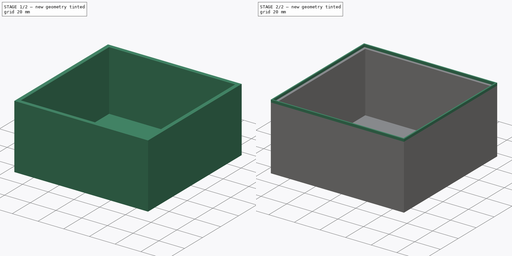
[diagram: build sequence overview — one tinted view per stage of 2, left to right]
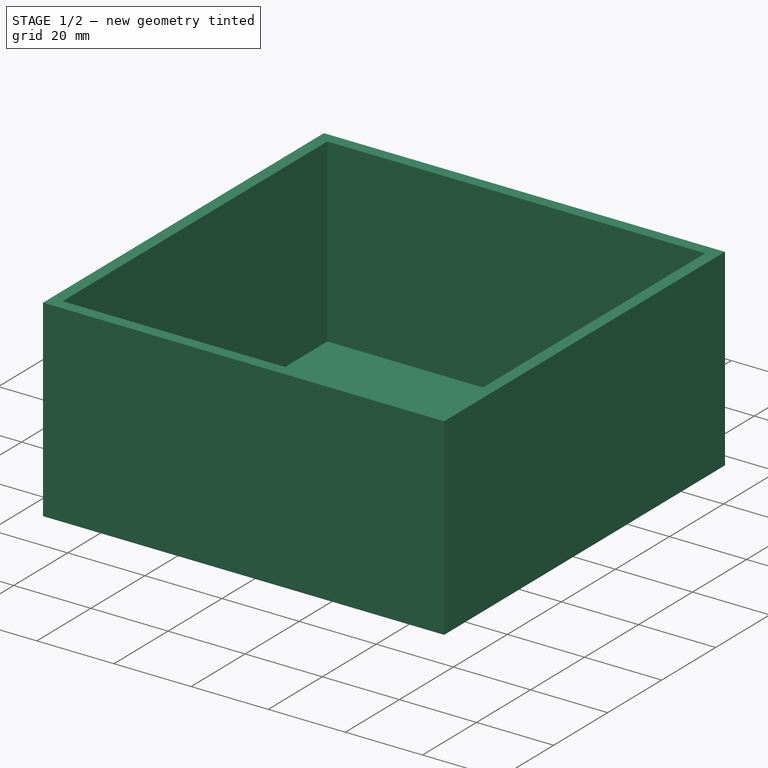
[diagram: stage 1 of 2 — iso view after this stage's code; geometry added in this stage tinted green]
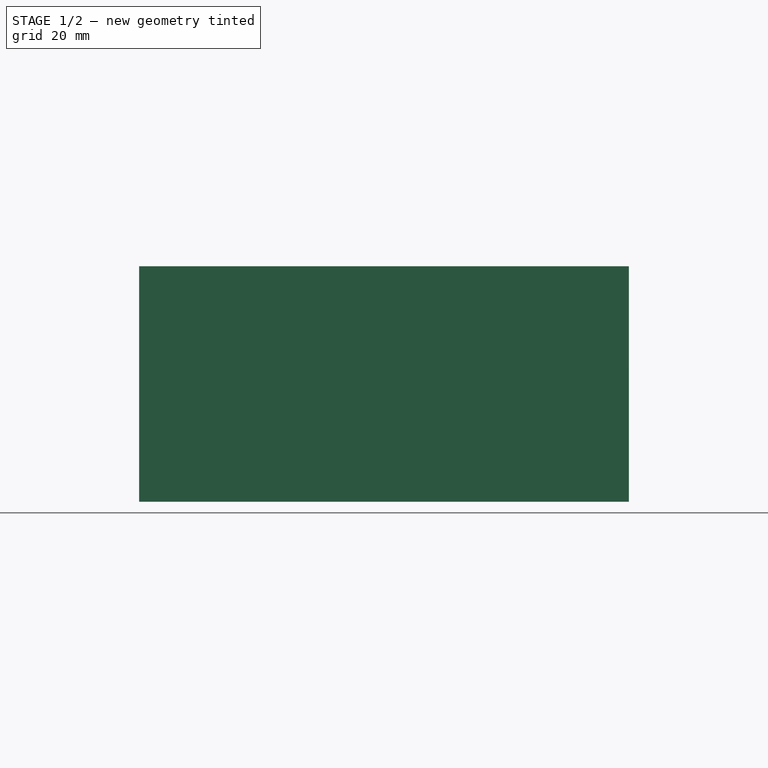
[diagram: stage 1 of 2 — front view after this stage's code; geometry added in this stage tinted green]
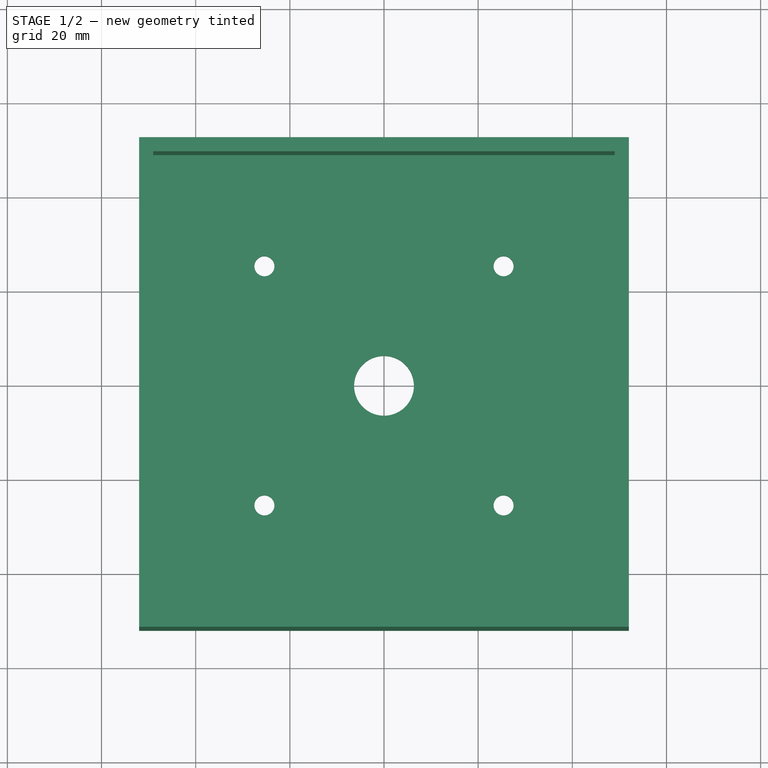
[diagram: stage 1 of 2 — top view after this stage's code; geometry added in this stage tinted green]
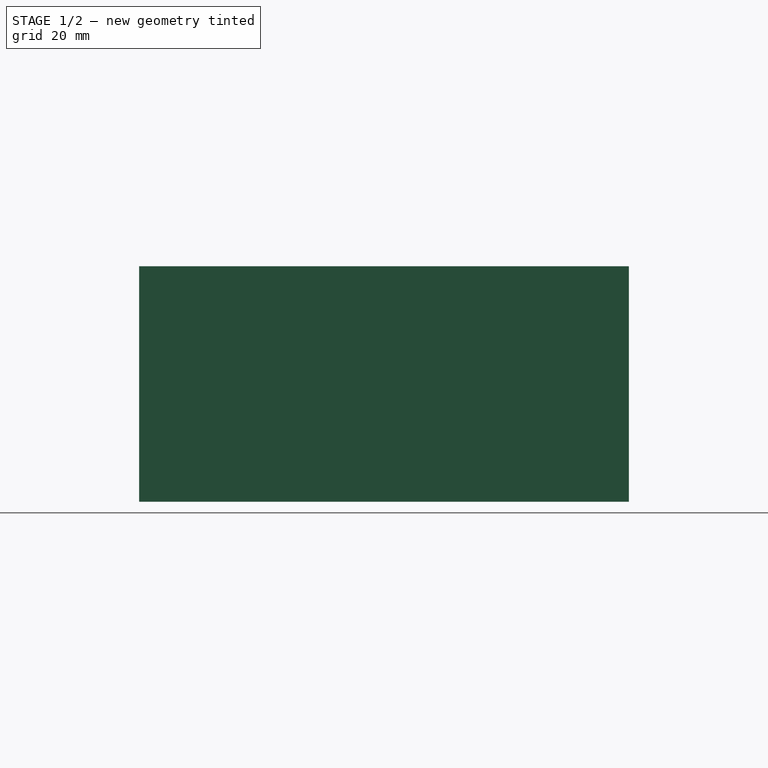
[diagram: stage 1 of 2 — right view after this stage's code; geometry added in this stage tinted green]
FCSTD DOCUMENT  (FreeCAD 0.20R29177 (Git))
Label: Lensmount
License: All rights reserved
LicenseURL: http://en.wikipedia.org/wiki/All_rights_reserved
objects: App::Part×24, Part::Feature×23, PartDesign::CoordinateSystem×5, Sketcher::SketchObject×5, PartDesign::Pad×4, App::DocumentObjectGroup×3, App::Link×3, PartDesign::Body×2, App::FeaturePython×1
note: 43 computed .brp shape members not serialized (recipe doc carries the construction recipe); baked Part::Feature solids carry a one-line shape summary decoded from their .brp

FEATURE [Part::Feature] Part__Feature  label="COMPOUND"
  shape: bbox 8.395 x 8.978 x 16.8 mm, 23 faces, 2 solids (baked)
FEATURE [App::Part] TO_18_2_Lens  label="TO-18-2_Lens"
  Group = -> [Part__Feature]
  Origin = -> Origin
  Placement = pos=(106.68,-82.55,1.65) rot=(0,0,1;0rad)
FEATURE [Part::Feature] Part__Feature001  label="SOLID"
  shape: bbox 1.6 x 0.8 x 0.45 mm, 26 faces (baked)
FEATURE [App::Part] R_0603_1608Metric
  Group = -> [Part__Feature001]
  Origin = -> Origin001
  Placement = pos=(109.22,-85.725,-0.05) rot=(0.707107,-0.707107,0;3.14159rad)
FEATURE [Part::Feature] Part__Feature002  label="SOLID001"
  shape: bbox 3.494 x 3.773 x 1.55 mm, 109 faces (baked)
FEATURE [App::Part] SOT_23_5  label="SOT-23-5"
  Group = -> [Part__Feature002]
  Origin = -> Origin002
  Placement = pos=(109.22,-72.39,-0.05) rot=(0,1,0;3.14159rad)
FEATURE [Part::Feature] Part__Feature003  label="SOLID002"
  shape: bbox 3.2 x 1.6 x 1.6 mm, 28 faces (baked)
FEATURE [App::Part] C_1206_3216Metric
  Group = -> [Part__Feature003]
  Origin = -> Origin003
  Placement = pos=(96.8125,-74.295,-0.05) rot=(0.707107,-0.707107,0;3.14159rad)
FEATURE [Part::Feature] Part__Feature004  label="SOLID003"
  shape: bbox 3.2 x 1.6 x 1.6 mm, 28 faces (baked)
FEATURE [App::Part] C_1206_3216Metric001
  Group = -> [Part__Feature004]
  Origin = -> Origin004
  Placement = pos=(87.63,-75.565,-0.05) rot=(1,0,0;3.14159rad)
FEATURE [Part::Feature] Part__Feature005  label="SOLID004"
  shape: bbox 3.2 x 1.6 x 1.6 mm, 28 faces (baked)
FEATURE [App::Part] C_1206_3216Metric002
  Group = -> [Part__Feature005]
  Origin = -> Origin005
  Placement = pos=(115.57,-72.39,-0.05) rot=(0,1,0;3.14159rad)
FEATURE [Part::Feature] Part__Feature006  label="SOLID005"
  shape: bbox 3.2 x 1.6 x 1.6 mm, 28 faces (baked)
FEATURE [App::Part] C_1206_3216Metric003
  Group = -> [Part__Feature006]
  Origin = -> Origin006
  Placement = pos=(107.315,-67.31,-0.05) rot=(0.707107,-0.707107,0;3.14159rad)
FEATURE [Part::Feature] Part__Feature007  label="SOLID006"
  shape: bbox 1.6 x 0.8 x 0.45 mm, 26 faces (baked)
FEATURE [App::Part] R_0603_1608Metric001
  Group = -> [Part__Feature007]
  Origin = -> Origin007
  Placement = pos=(92.075,-81.28,-0.05) rot=(0,1,0;3.14159rad)
FEATURE [Part::Feature] Part__Feature008  label="SOLID007"
  shape: bbox 2 x 1.2 x 0.45 mm, 26 faces (baked)
FEATURE [App::Part] R_0805_2012Metric
  Group = -> [Part__Feature008]
  Origin = -> Origin008
  Placement = pos=(85.09,-66.802,-0.05) rot=(0.707107,0.707107,0;3.14159rad)
FEATURE [Part::Feature] Part__Feature009  label="SOLID008"
  shape: bbox 2 x 1.2 x 0.45 mm, 26 faces (baked)
FEATURE [App::Part] R_0805_2012Metric001
  Group = -> [Part__Feature009]
  Origin = -> Origin009
  Placement = pos=(92.075,-79.375,-0.05) rot=(0,1,0;3.14159rad)
FEATURE [Part::Feature] Part__Feature010  label="SOLID009"
  shape: bbox 1.6 x 0.8 x 0.45 mm, 26 faces (baked)
FEATURE [App::Part] R_0603_1608Metric002
  Group = -> [Part__Feature010]
  Origin = -> Origin010
  Placement = pos=(110.49,-76.2,-0.05) rot=(0.707107,-0.707107,0;3.14159rad)
FEATURE [Part::Feature] Part__Feature011  label="SOLID010"
  shape: bbox 1.6 x 0.8 x 0.45 mm, 26 faces (baked)
FEATURE [App::Part] R_0603_1608Metric003
  Group = -> [Part__Feature011]
  Origin = -> Origin011
  Placement = pos=(114.3,-76.2,-0.05) rot=(0.707107,0.707107,0;3.14159rad)
FEATURE [Part::Feature] Part__Feature012  label="SOLID011"
  shape: bbox 2 x 1.2 x 0.45 mm, 26 faces (baked)
FEATURE [App::Part] R_0805_2012Metric002
  Group = -> [Part__Feature012]
  Origin = -> Origin012
  Placement = pos=(104.775,-75.565,-0.05) rot=(0,1,0;3.14159rad)
FEATURE [Part::Feature] Part__Feature013  label="SOLID012"
  shape: bbox 1.6 x 0.8 x 0.45 mm, 26 faces (baked)
FEATURE [App::Part] R_0603_1608Metric004
  Group = -> [Part__Feature013]
  Origin = -> Origin013
  Placement = pos=(112.395,-76.2,-0.05) rot=(0.707107,0.707107,0;3.14159rad)
FEATURE [Part::Feature] Part__Feature014  label="COMPOUND001"
  shape: bbox 13.37 x 7.372 x 8.689 mm, 76 faces, 3 solids (baked)
FEATURE [App::Part] CON_SMA_EDGE_S  label="CON-SMA-EDGE-S"
  Group = -> [Part__Feature014]
  Origin = -> Origin014
  Placement = pos=(78.1325,-82.55,-0.05) rot=(-1,0,0;1.5708rad)
FEATURE [Part::Feature] Part__Feature015  label="SOLID013"
  shape: bbox 3.2 x 2.5 x 2.5 mm, 28 faces (baked)
FEATURE [App::Part] C_1210_3225Metric
  Group = -> [Part__Feature015]
  Origin = -> Origin015
  Placement = pos=(89.535,-67.818,-0.05) rot=(0,1,0;3.14159rad)
FEATURE [Part::Feature] Part__Feature016  label="SOLID014"
  shape: bbox 2 x 1.2 x 0.45 mm, 26 faces (baked)
FEATURE [App::Part] R_0805_2012Metric003
  Group = -> [Part__Feature016]
  Origin = -> Origin016
  Placement = pos=(93.98,-71.755,-0.05) rot=(0.707107,-0.707107,0;3.14159rad)
FEATURE [Part::Feature] Part__Feature017  label="SOLID015"
  shape: bbox 3.494 x 3.773 x 1.55 mm, 109 faces (baked)
FEATURE [App::Part] SOT_23_5001  label="SOT-23-006"
  Group = -> [Part__Feature017]
  Origin = -> Origin017
  Placement = pos=(92.71,-76.2,-0.05) rot=(0,1,0;3.14159rad)
FEATURE [Part::Feature] Part__Feature018  label="SOLID016"
  shape: bbox 1.6 x 0.8 x 0.45 mm, 26 faces (baked)
FEATURE [App::Part] R_0603_1608Metric005
  Group = -> [Part__Feature018]
  Origin = -> Origin018
  Placement = pos=(107.315,-85.725,-0.05) rot=(0.707107,-0.707107,0;3.14159rad)
FEATURE [Part::Feature] Part__Feature019  label="SOLID017"
  shape: bbox 1.6 x 0.8 x 0.8 mm, 28 faces (baked)
FEATURE [App::Part] C_0603_1608Metric
  Group = -> [Part__Feature019]
  Origin = -> Origin019
  Placement = pos=(104.775,-73.66,-0.05) rot=(0,1,0;3.14159rad)
FEATURE [Part::Feature] Part__Feature020  label="SOLID018"
  shape: bbox 2 x 1.25 x 1.25 mm, 28 faces (baked)
FEATURE [App::Part] C_0805_2012Metric
  Group = -> [Part__Feature020]
  Origin = -> Origin020
  Placement = pos=(116.205,-76.2,-0.05) rot=(0.707107,-0.707107,0;3.14159rad)
FEATURE [Part::Feature] Part__Feature021  label="SOLID019"
  shape: bbox 7.62 x 5.8 x 15.26 mm, 91 faces (baked)
FEATURE [App::Part] Molex_KK_254_AE_6410_03A_1x03_P2_54mm_Vertical  label="Molex_KK-254_AE-6410-03A_1x03_P2.54mm_Vertical"
  Group = -> [Part__Feature021]
  Origin = -> Origin021
  Placement = pos=(133.33,-85.09,-0.05) rot=(0.707107,0.707107,0;3.14159rad)
FEATURE [Part::Feature] Part__Feature022  label="ADA4610 Transimpedance Amplifier PCB"
  shape: bbox 63.5 x 63.5 x 1.6 mm, 25 faces (baked)
FEATURE [PartDesign::CoordinateSystem] LCS_Origin
  AttacherType = Attacher::AttachEngine3D
  MapMode = 2
  Support = -> [X_Axis023]
FEATURE [App::DocumentObjectGroup] Constraints
FEATURE [App::FeaturePython] Variables  # WARN: FeaturePython — macro-defined, semantics opaque (R4)
  Type = App::PropertyContainer
FEATURE [App::DocumentObjectGroup] Configurations
FEATURE [Sketcher::SketchObject] Sketch
  FullyConstrained = true
  MapMode = 5
  Support = -> [XY_Plane024]
  sketch-geometry (11):
    g0: LineSegment StartX=-52 StartY=-52 StartZ=0 EndX=52 EndY=-52 EndZ=0
    g1: LineSegment StartX=52 StartY=-52 StartZ=0 EndX=52 EndY=52 EndZ=0
    g2: LineSegment StartX=52 StartY=52 StartZ=0 EndX=-52 EndY=52 EndZ=0
    g3: LineSegment StartX=-52 StartY=52 StartZ=0 EndX=-52 EndY=-52 EndZ=0
    g4: LineSegment StartX=-52 StartY=-52 StartZ=0 EndX=52 EndY=52 EndZ=0
    g5: LineSegment StartX=-52 StartY=52 StartZ=0 EndX=52 EndY=-52 EndZ=0
    g6: Circle CenterX=-25.4 CenterY=25.4 CenterZ=0 NormalX=0 NormalY=0 NormalZ=1 AngleXU=0 Radius=2.125
    g7: Circle CenterX=25.4 CenterY=25.4 CenterZ=0 NormalX=0 NormalY=0 NormalZ=1 AngleXU=0 Radius=2.125
    g8: Circle CenterX=25.4 CenterY=-25.4 CenterZ=0 NormalX=0 NormalY=0 NormalZ=1 AngleXU=0 Radius=2.125
    g9: Circle CenterX=-25.4 CenterY=-25.4 CenterZ=0 NormalX=0 NormalY=0 NormalZ=1 AngleXU=0 Radius=2.125
    g10: Circle CenterX=0 CenterY=0 CenterZ=0 NormalX=0 NormalY=0 NormalZ=1 AngleXU=0 Radius=6.35
  constraints (30):
    c: Horizontal(g0)
    c: Horizontal(g2)
    c: Vertical(g1)
    c: Vertical(g3)
    c: DistanceX(g4,g5) = 104
    c: DistanceY(g4,g5) = 104
    c: PointOnObject(g-1,g5)
    c: PointOnObject(g-1,g4)
    c: PointOnObject(g6,g5)
    c: PointOnObject(g7,g4)
    c: PointOnObject(g8,g5)
    c: PointOnObject(g9,g4)
    c: Equal(g6,g7)
    c: Equal(g6,g8)
    c: Equal(g6,g9)
    c: Radius(g6) = 2.125
    c: Coincident(g10,g-1)
    c: Radius(g10) = 6.35
    c: Coincident(g5,g2)
    c: Coincident(g5,g3)
    c: Coincident(g2,g4)
    c: Coincident(g2,g1)
    c: Coincident(g0,g1)
    c: Coincident(g0,g5)
    c: Coincident(g3,g4)
    c: Coincident(g3,g0)
    c: Distance(g6,g10) = 35.921
    c: Distance(g9,g10) = 35.921
    c: Distance(g8,g10) = 35.921
    c: Distance(g7,g10) = 35.921
FEATURE [PartDesign::Pad] Pad
  Direction = (0,0,1)
  Length = 3.175
  Length2 = 9.906
  Profile = -> Sketch
  ReferenceAxis = -> Sketch [N_Axis]
  Type = 0
FEATURE [Sketcher::SketchObject] Sketch002
  FullyConstrained = true
  MapMode = 5
  Placement = pos=(0,0,3.175) rot=(0,0,1;0rad)
  Support = -> [Pad]
FEATURE [Sketcher::SketchObject] Sketch003
  ExternalGeometry = -> [Pad]
  FullyConstrained = true
  MapMode = 5
  Placement = pos=(0,0,3.175) rot=(0,0,1;0rad)
  Support = -> [Pad]
  sketch-geometry (8):
    g0: LineSegment StartX=-52 StartY=-52 StartZ=0 EndX=52 EndY=-52 EndZ=0
    g1: LineSegment StartX=52 StartY=-52 StartZ=0 EndX=52 EndY=52 EndZ=0
    g2: LineSegment StartX=52 StartY=52 StartZ=0 EndX=-52 EndY=52 EndZ=0
    g3: LineSegment StartX=-52 StartY=52 StartZ=0 EndX=-52 EndY=-52 EndZ=0
    g4: LineSegment StartX=-49 StartY=-49 StartZ=0 EndX=49 EndY=-49 EndZ=0
    g5: LineSegment StartX=49 StartY=-49 StartZ=0 EndX=49 EndY=49 EndZ=0
    g6: LineSegment StartX=49 StartY=49 StartZ=0 EndX=-49 EndY=49 EndZ=0
    g7: LineSegment StartX=-49 StartY=49 StartZ=0 EndX=-49 EndY=-49 EndZ=0
  constraints (22):
    c: Coincident(g0,g1)
    c: Coincident(g1,g2)
    c: Coincident(g2,g3)
    c: Coincident(g3,g0)
    c: Horizontal(g0)
    c: Horizontal(g2)
    c: Vertical(g1)
    c: Vertical(g3)
    c: Coincident(g0,g-6)
    c: Coincident(g1,g-5)
    c: Coincident(g4,g5)
    c: Coincident(g5,g6)
    c: Coincident(g6,g7)
    c: Coincident(g7,g4)
    c: Horizontal(g4)
    c: Horizontal(g6)
    c: Vertical(g5)
    c: Vertical(g7)
    c: DistanceY(g6,g2) = 3
    c: DistanceX(g2,g6) = 3
    c: DistanceY(g0,g4) = 3
    c: DistanceX(g4,g0) = 3
FEATURE [PartDesign::Pad] Pad002  label="Walls"
  BaseFeature = -> Pad
  Direction = (0,0,1)
  Length = 46.863
  Length2 = 9.906
  Profile = -> Sketch003
  ReferenceAxis = -> Sketch003 [N_Axis]
  Type = 0
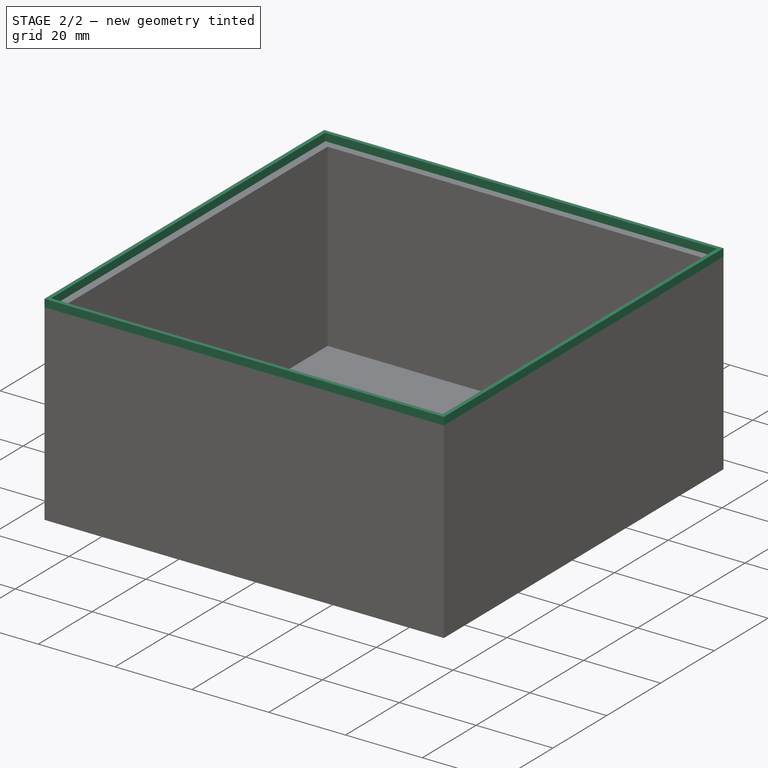
[diagram: stage 2 of 2 — iso view after this stage's code; geometry added in this stage tinted green]
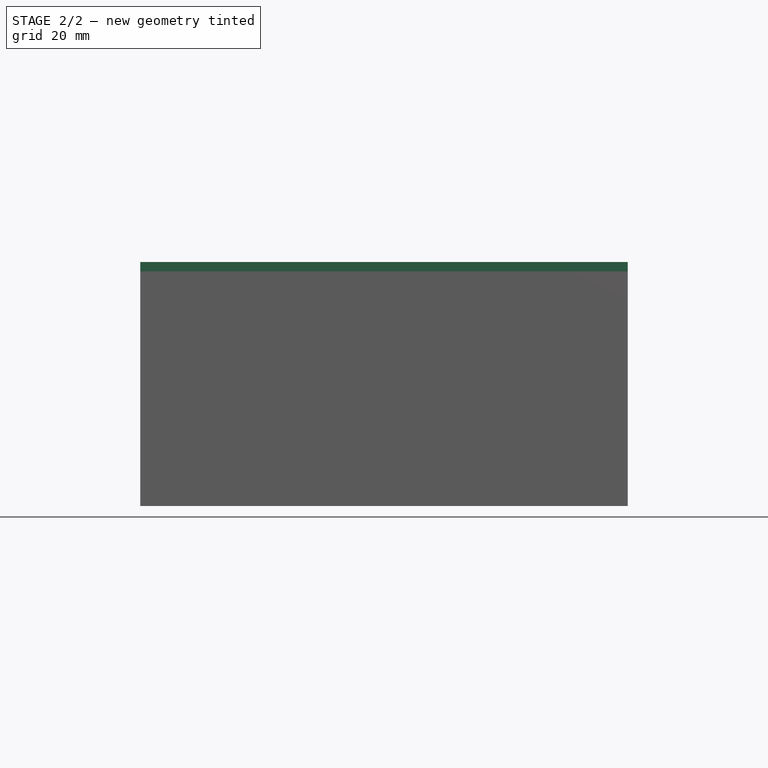
[diagram: stage 2 of 2 — front view after this stage's code; geometry added in this stage tinted green]
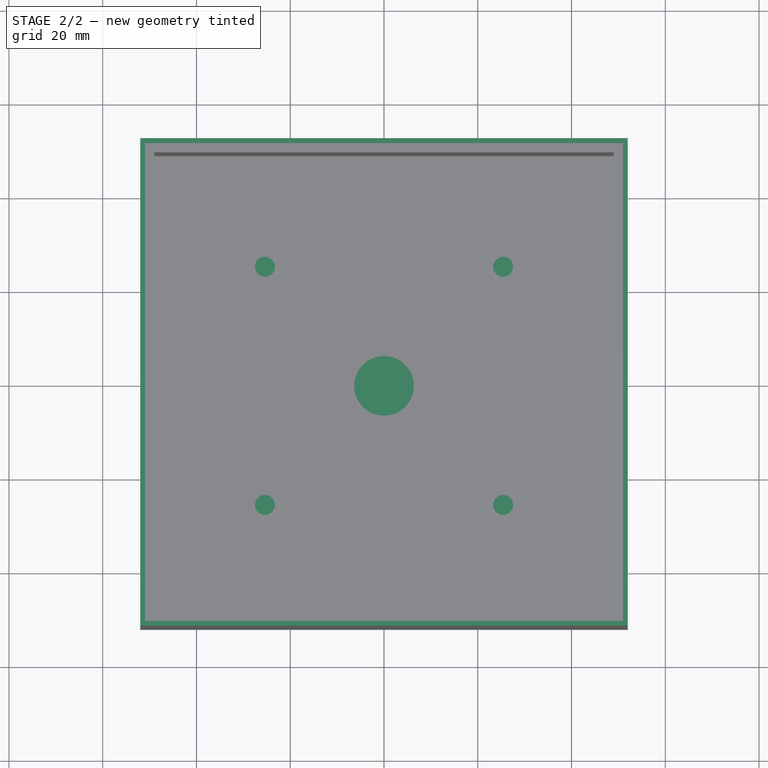
[diagram: stage 2 of 2 — top view after this stage's code; geometry added in this stage tinted green]
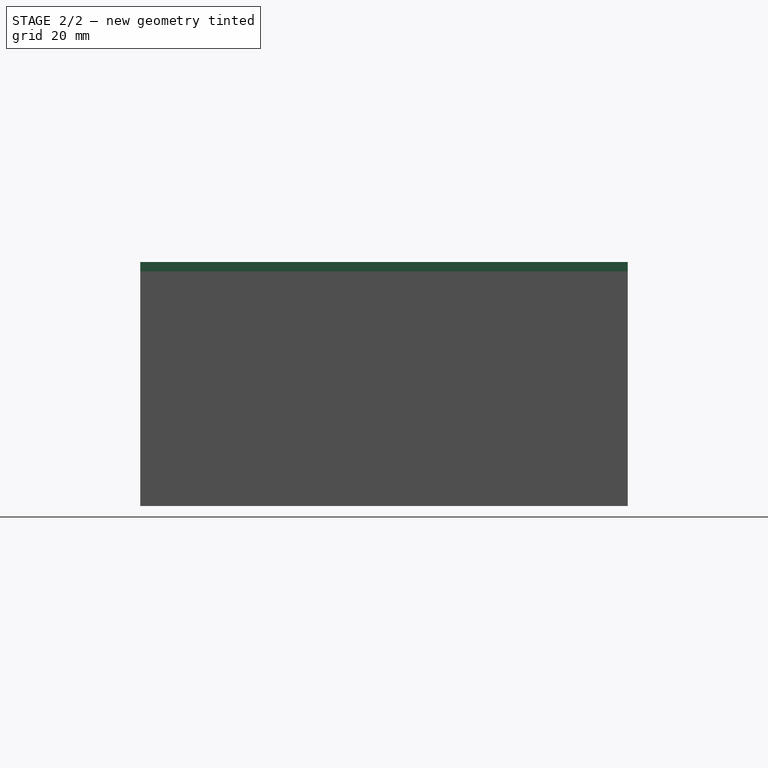
[diagram: stage 2 of 2 — right view after this stage's code; geometry added in this stage tinted green]
FEATURE [Sketcher::SketchObject] Sketch001
  FullyConstrained = true
  MapMode = 5
  Support = -> [XY_Plane025]
  sketch-geometry (6):
    g0: LineSegment StartX=-50 StartY=-50 StartZ=0 EndX=50 EndY=-50 EndZ=0
    g1: LineSegment StartX=50 StartY=-50 StartZ=0 EndX=50 EndY=50 EndZ=0
    g2: LineSegment StartX=50 StartY=50 StartZ=0 EndX=-50 EndY=50 EndZ=0
    g3: LineSegment StartX=-50 StartY=50 StartZ=0 EndX=-50 EndY=-50 EndZ=0
    g4: LineSegment StartX=-50 StartY=-50 StartZ=0 EndX=50 EndY=50 EndZ=0
    g5: LineSegment StartX=50 StartY=-50 StartZ=0 EndX=-50 EndY=50 EndZ=0
  constraints (16):
    c: Coincident(g0,g1)
    c: Coincident(g1,g2)
    c: Coincident(g2,g3)
    c: Coincident(g3,g0)
    c: Horizontal(g0)
    c: Horizontal(g2)
    c: Vertical(g1)
    c: Vertical(g3)
    c: DistanceY(g3,g3) = 100
    c: DistanceX(g0,g0) = 100
    c: Coincident(g4,g0)
    c: Coincident(g4,g1)
    c: Coincident(g5,g0)
    c: Coincident(g5,g2)
    c: PointOnObject(g-1,g5)
    c: PointOnObject(g-1,g4)
FEATURE [PartDesign::Pad] Pad001
  Direction = (0,0,1)
  Length = 2
  Length2 = 9.906
  Profile = -> Sketch001
  ReferenceAxis = -> Sketch001 [N_Axis]
  Type = 0
FEATURE [Sketcher::SketchObject] Sketch004
  ExternalGeometry = -> [Pad002]
  FullyConstrained = true
  MapMode = 5
  Placement = pos=(0,0,50.038) rot=(0,0,1;0rad)
  Support = -> [Pad002]
  sketch-geometry (8):
    g0: LineSegment StartX=-52 StartY=-52 StartZ=0 EndX=52 EndY=-52 EndZ=0
    g1: LineSegment StartX=52 StartY=-52 StartZ=0 EndX=52 EndY=52 EndZ=0
    g2: LineSegment StartX=52 StartY=52 StartZ=0 EndX=-52 EndY=52 EndZ=0
    g3: LineSegment StartX=-52 StartY=52 StartZ=0 EndX=-52 EndY=-52 EndZ=0
    g4: LineSegment StartX=-50.984 StartY=-50.984 StartZ=0 EndX=50.984 EndY=-50.984 EndZ=0
    g5: LineSegment StartX=50.984 StartY=-50.984 StartZ=0 EndX=50.984 EndY=50.984 EndZ=0
    g6: LineSegment StartX=50.984 StartY=50.984 StartZ=0 EndX=-50.984 EndY=50.984 EndZ=0
    g7: LineSegment StartX=-50.984 StartY=50.984 StartZ=0 EndX=-50.984 EndY=-50.984 EndZ=0
  constraints (22):
    c: Coincident(g0,g1)
    c: Coincident(g1,g2)
    c: Coincident(g2,g3)
    c: Coincident(g3,g0)
    c: Horizontal(g0)
    c: Horizontal(g2)
    c: Vertical(g1)
    c: Vertical(g3)
    c: Coincident(g0,g-4)
    c: Coincident(g1,g-3)
    c: Coincident(g4,g5)
    c: Coincident(g5,g6)
    c: Coincident(g6,g7)
    c: Coincident(g7,g4)
    c: Horizontal(g4)
    c: Horizontal(g6)
    c: Vertical(g5)
    c: Vertical(g7)
    c: DistanceX(g2,g6) = 1.016
    c: DistanceY(g6,g2) = 1.016
    c: DistanceY(g0,g4) = 1.016
    c: DistanceX(g4,g0) = 1.016
FEATURE [PartDesign::Pad] Pad003
  BaseFeature = -> Pad002
  Direction = (0,0,1)
  Length = 2
  Length2 = 9.906
  Profile = -> Sketch004
  ReferenceAxis = -> Sketch004 [N_Axis]
  Type = 0
FEATURE [PartDesign::CoordinateSystem] LCS_MH1
  AttacherType = Attacher::AttachEngine3D
  MapMode = 11
  Placement = pos=(-25.4,-25.4,0) rot=(0,0,1;1.5708rad)
  Support = -> [Pad003]
FEATURE [PartDesign::CoordinateSystem] LCS_LENS
  AttacherType = Attacher::AttachEngine3D
  MapMode = 45
  Placement = pos=(-3.21e-14,-6.2e-15,50.038) rot=(0,0,1;0rad)
  Support = -> [Pad003]
FEATURE [PartDesign::Body] Body  label="PCB Mount"
  Group = -> [Sketch,Pad,Sketch002,Sketch003,Pad002,Sketch004,Pad003,LCS_MH1,LCS_LENS]
  Origin = -> Origin024
  Tip = -> Pad003
FEATURE [PartDesign::CoordinateSystem] LCS_1
  AttacherType = Attacher::AttachEngine3D
  MapMode = 45
  Placement = pos=(-2e-16,0,0) rot=(0,0,1;0rad)
  Support = -> [Pad001]
FEATURE [PartDesign::Body] Body001  label="Lens"
  Group = -> [Sketch001,Pad001,LCS_1]
  Origin = -> Origin025
  Placement = pos=(0,0,70.32) rot=(0,0,1;0rad)
  Tip = -> Pad001
FEATURE [App::Link] PCB_Mount  label="PCB Mount001"
  AssemblyType = Part::Link
  AttachedBy = #LCS_LENS
  AttachedTo = Parent Assembly#LCS_Origin
  LinkPlacement = pos=(3.21e-14,6.2e-15,-50.038) rot=(0,0,1;0rad)
  LinkedObject = -> Body
  Placement = pos=(3.21e-14,6.2e-15,-50.038) rot=(0,0,1;0rad)
  SolverId = Asm4EE
  expr: Placement = LCS_Origin.Placement * AttachmentOffset * LCS_LENS.Placement ^ -1
FEATURE [App::Link] Lens  label="Lens001"
  AssemblyType = Part::Link
  AttachedBy = #LCS_1
  AttachedTo = PCB_Mount#LCS_LENS
  LinkPlacement = pos=(2e-16,0,0) rot=(0,0,1;0rad)
  LinkedObject = -> Body001
  Placement = pos=(2e-16,0,0) rot=(0,0,1;0rad)
  SolverId = Asm4EE
  expr: Placement = PCB_Mount.Placement * LCS_LENS.Placement * AttachmentOffset * LCS_1.Placement ^ -1
FEATURE [App::Link] ADA4610_Transimpedance_Amplifier_1001  label="ADA4610 Transimpedance Amplifier 002"
  AssemblyType = Part::Link
  AttachedBy = #LCS_MH1001
  AttachedTo = PCB_Mount#LCS_MH1
  AttachmentOffset = pos=(0,0,-5.08) rot=(0,0,1;1.5708rad)
  LinkPlacement = pos=(-82.55,-107.95,-56.718) rot=(0,0,1;1.5708rad)
  LinkedObject = -> ADA4610_Transimpedance_Amplifier_1
  Placement = pos=(-82.55,-107.95,-56.718) rot=(0,0,1;1.5708rad)
  SolverId = Asm4EE
  expr: Placement = PCB_Mount.Placement * LCS_MH1.Placement * AttachmentOffset * LCS_MH1001.Placement ^ -1
FEATURE [App::Part] Model
  AssemblyType = Part::Link
  Group = -> [LCS_Origin,Constraints,Variables,Configurations,PCB_Mount,Lens,ADA4610_Transimpedance_Amplifier_1001]
  Origin = -> Origin023
  Type = Assembly
FEATURE [PartDesign::CoordinateSystem] LCS_MH1001
  AttacherType = Attacher::AttachEngine3D
  MapMode = 11
  Placement = pos=(82.55,-57.15,1.6) rot=(0,0,1;1.5708rad)
  Support = -> [Part__Feature022]
FEATURE [App::Part] ADA4610_Transimpedance_Amplifier_1  label="ADA4610 Transimpedance Amplifier 1"
  Group = -> [TO_18_2_Lens,R_0603_1608Metric,SOT_23_5,C_1206_3216Metric,C_1206_3216Metric001,C_1206_3216Metric002,C_1206_3216Metric003,R_0603_1608Metric001,R_0805_2012Metric,R_0805_2012Metric001,R_0603_1608Metric002,R_0603_1608Metric003,R_0805_2012Metric002,R_0603_1608Metric004,CON_SMA_EDGE_S,C_1210_3225Metric,R_0805_2012Metric003,SOT_23_5001,R_0603_1608Metric005,C_0603_1608Metric,C_0805_2012Metric,+3 more]
  Origin = -> Origin022
FEATURE [App::DocumentObjectGroup] Parts
  Group = -> [ADA4610_Transimpedance_Amplifier_1,Body,Body001]
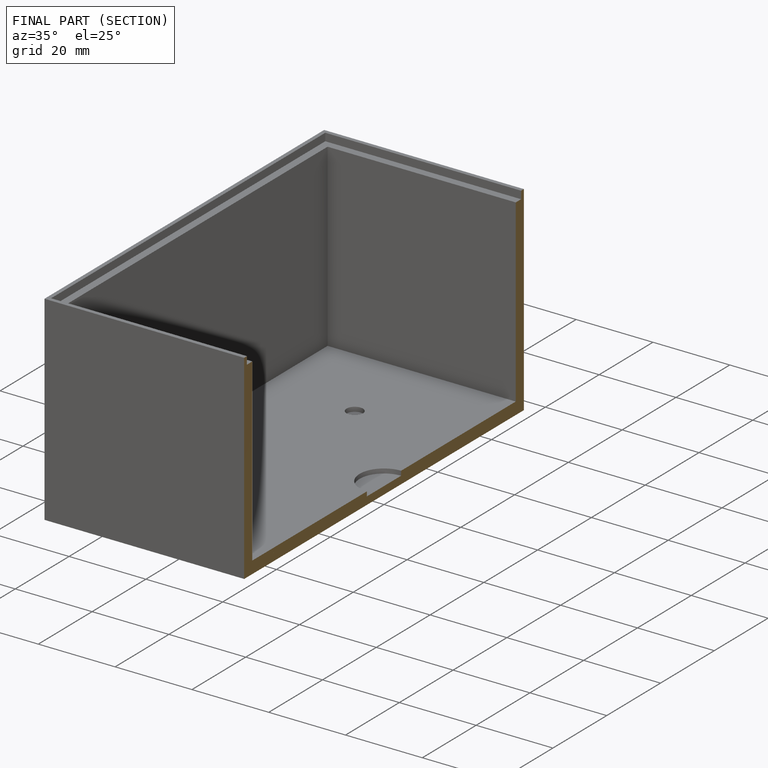
[diagram: finished part — half-section view (interior)]
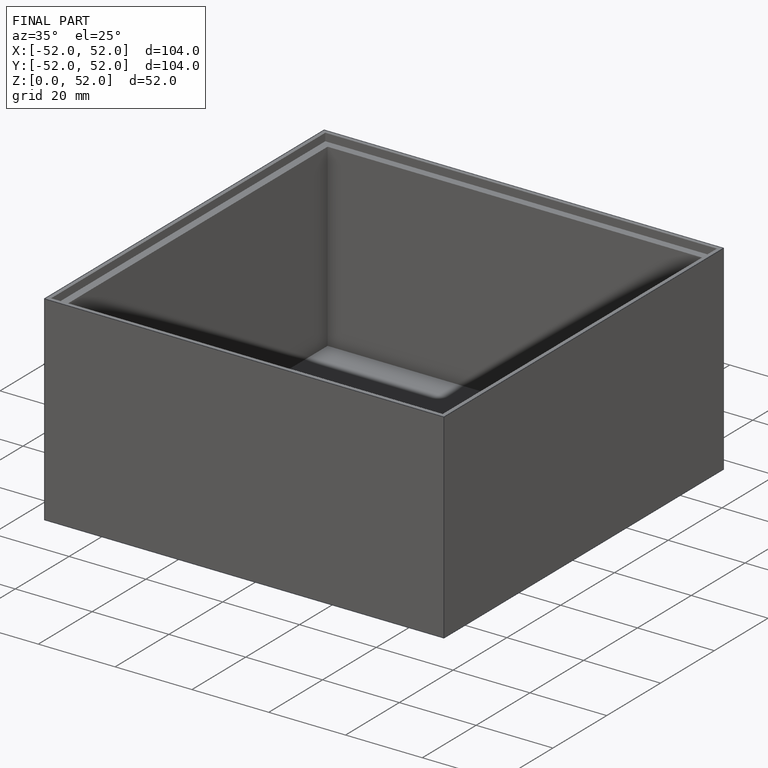
[diagram: finished part — iso view with bounding-box wireframe]
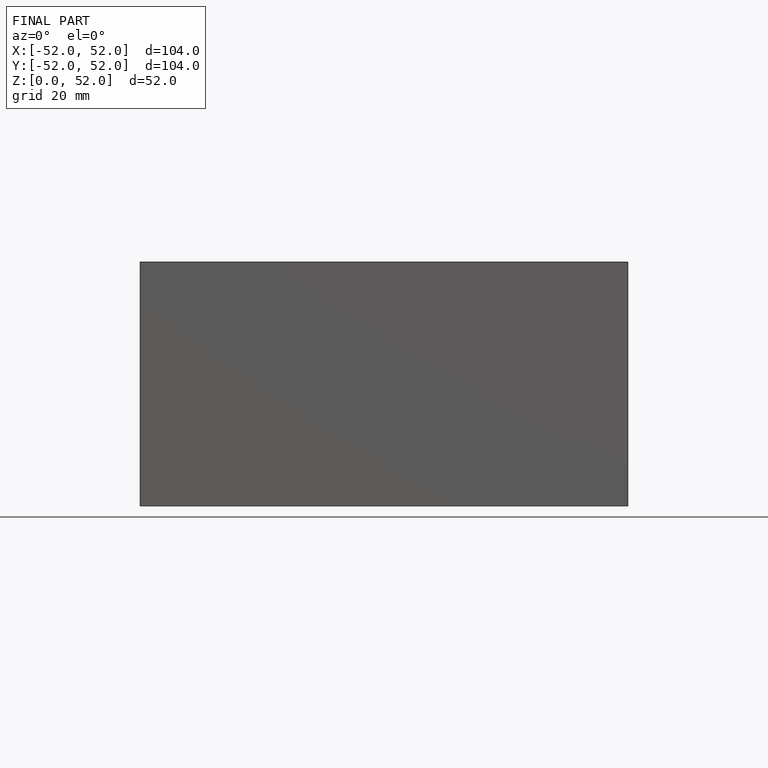
[diagram: finished part — front view with bounding-box wireframe]
